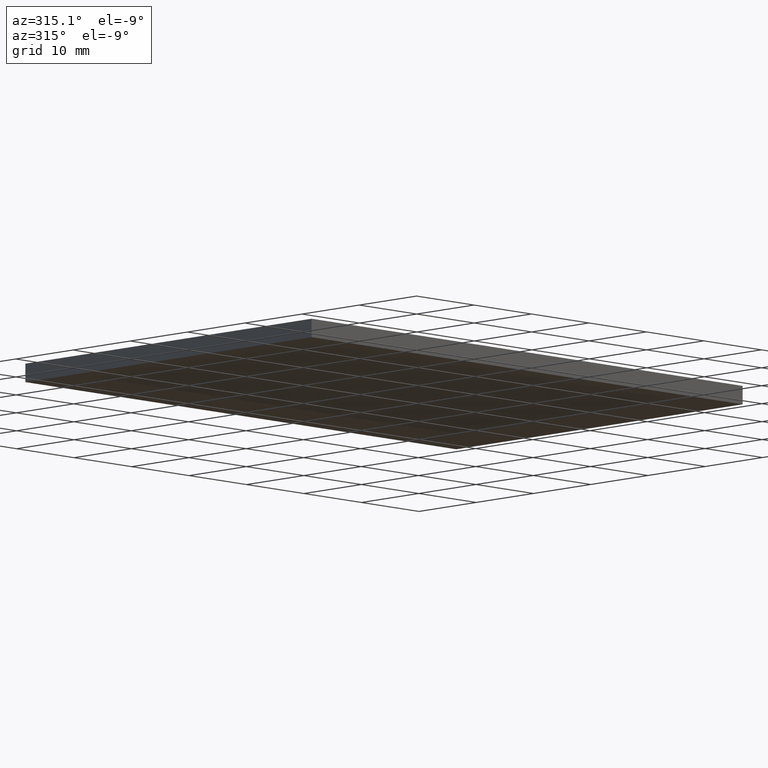
[diagram: clean part render]
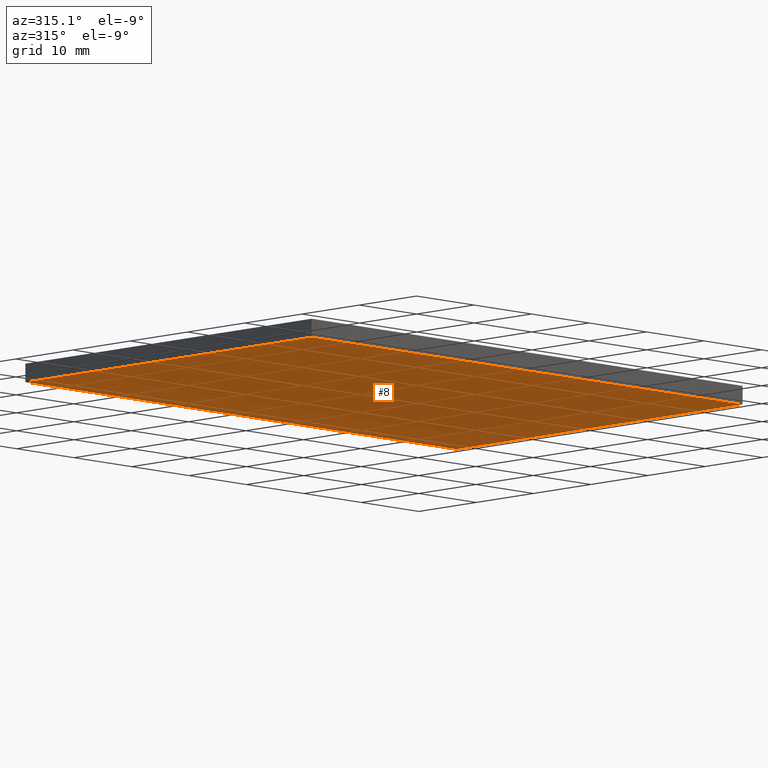
[diagram: same view with one face highlighted and labeled with its STEP entity id]
A machine part, auxiliary view. The second image highlights one B-rep face of the part: STEP entity #8.
In plain terms, the highlighted planar face has unit normal (-0, 0, 1).
Its self-contained STEP definition (entity closure, byte-faithful):
#8 = ADVANCED_FACE ( 'NONE', ( #114 ), #147, .F. ) ;
#31 = ORIENTED_EDGE ( 'NONE', *, *, #181, .F. ) ;
#40 = EDGE_CURVE ( 'NONE', #76, #194, #108, .T. ) ;
#44 = VECTOR ( 'NONE', #98, 1000.000000000000000 ) ;
#46 = CARTESIAN_POINT ( 'NONE',  ( 179.7299678845673700, 148.1264836690531300, 0.0000000000000000000 ) ) ;
#51 = DIRECTION ( 'NONE',  ( -0.0000000000000000000, 0.0000000000000000000, 1.000000000000000000 ) ) ;
#53 = CARTESIAN_POINT ( 'NONE',  ( 179.7299678845673700, 148.1264836690531300, 0.0000000000000000000 ) ) ;
#55 = VERTEX_POINT ( 'NONE', #196 ) ;
#57 = AXIS2_PLACEMENT_3D ( 'NONE', #115, #51, #117 ) ;
#69 = CARTESIAN_POINT ( 'NONE',  ( 254.7299678845673700, 98.12648366905320100, 0.0000000000000000000 ) ) ;
#76 = VERTEX_POINT ( 'NONE', #46 ) ;
#91 = ORIENTED_EDGE ( 'NONE', *, *, #40, .F. ) ;
#93 = DIRECTION ( 'NONE',  ( -1.000000000000000000, -3.700743415417189100E-016, -0.0000000000000000000 ) ) ;
#94 = CARTESIAN_POINT ( 'NONE',  ( 179.7299678845673700, 148.1264836690531300, 0.0000000000000000000 ) ) ;
#98 = DIRECTION ( 'NONE',  ( 1.000000000000000000, 0.0000000000000000000, 0.0000000000000000000 ) ) ;
#103 = DIRECTION ( 'NONE',  ( -0.0000000000000000000, 1.000000000000000000, -0.0000000000000000000 ) ) ;
#104 = VECTOR ( 'NONE', #103, 1000.000000000000000 ) ;
#108 = LINE ( 'NONE', #94, #129 ) ;
#111 = ORIENTED_EDGE ( 'NONE', *, *, #137, .F. ) ;
#114 = FACE_OUTER_BOUND ( 'NONE', #155, .T. ) ;
#115 = CARTESIAN_POINT ( 'NONE',  ( 0.0000000000000000000, 0.0000000000000000000, 0.0000000000000000000 ) ) ;
#116 = LINE ( 'NONE', #149, #104 ) ;
#117 = DIRECTION ( 'NONE',  ( 1.000000000000000000, 0.0000000000000000000, 0.0000000000000000000 ) ) ;
#125 = LINE ( 'NONE', #156, #44 ) ;
#129 = VECTOR ( 'NONE', #176, 1000.000000000000000 ) ;
#137 = EDGE_CURVE ( 'NONE', #194, #152, #125, .T. ) ;
#142 = CARTESIAN_POINT ( 'NONE',  ( 179.7299678845673700, 98.12648366905320100, 0.0000000000000000000 ) ) ;
#146 = ORIENTED_EDGE ( 'NONE', *, *, #200, .F. ) ;
#147 = PLANE ( 'NONE',  #57 ) ;
#149 = CARTESIAN_POINT ( 'NONE',  ( 254.7299678845673700, 148.1264836690531600, 0.0000000000000000000 ) ) ;
#152 = VERTEX_POINT ( 'NONE', #69 ) ;
#155 = EDGE_LOOP ( 'NONE', ( #91, #146, #31, #111 ) ) ;
#156 = CARTESIAN_POINT ( 'NONE',  ( 179.7299678845673700, 98.12648366905320100, 0.0000000000000000000 ) ) ;
#171 = VECTOR ( 'NONE', #93, 1000.000000000000000 ) ;
#176 = DIRECTION ( 'NONE',  ( 0.0000000000000000000, -1.000000000000000000, 0.0000000000000000000 ) ) ;
#180 = LINE ( 'NONE', #53, #171 ) ;
#181 = EDGE_CURVE ( 'NONE', #152, #55, #116, .T. ) ;
#194 = VERTEX_POINT ( 'NONE', #142 ) ;
#196 = CARTESIAN_POINT ( 'NONE',  ( 254.7299678845673700, 148.1264836690531600, 0.0000000000000000000 ) ) ;
#200 = EDGE_CURVE ( 'NONE', #55, #76, #180, .T. ) ;